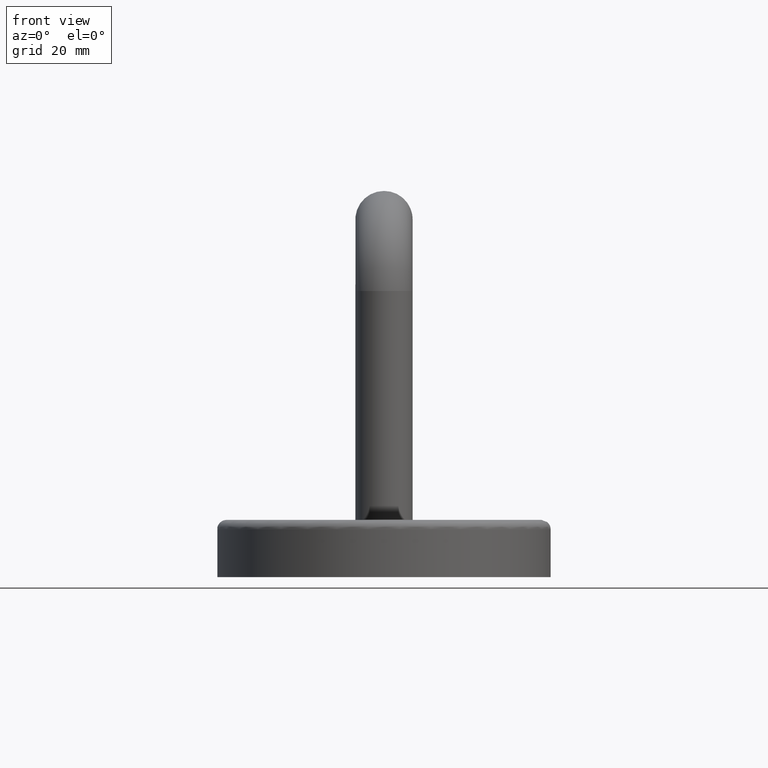
[diagram: clean part render]
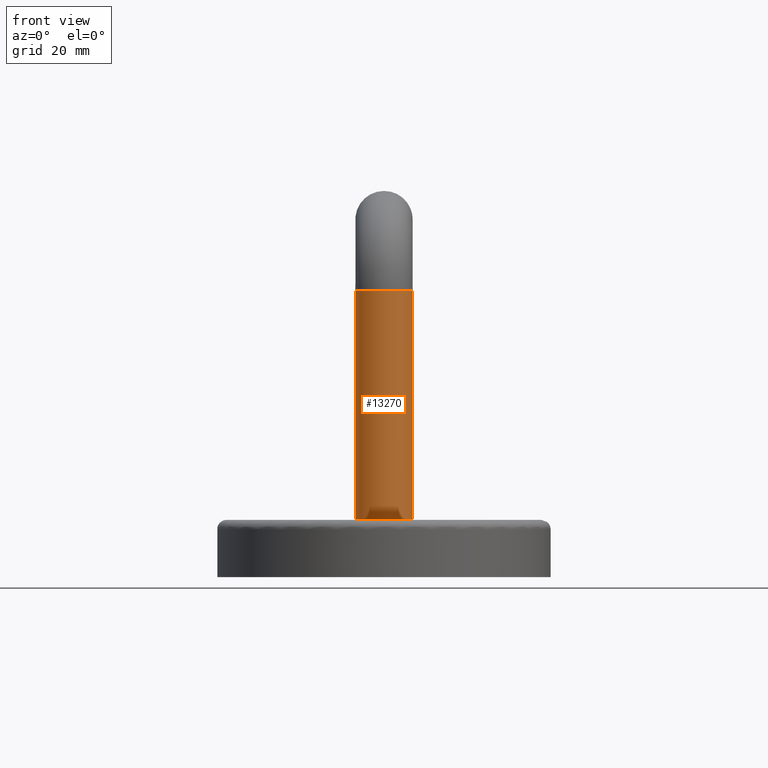
[diagram: same view with one face highlighted and labeled with its STEP entity id]
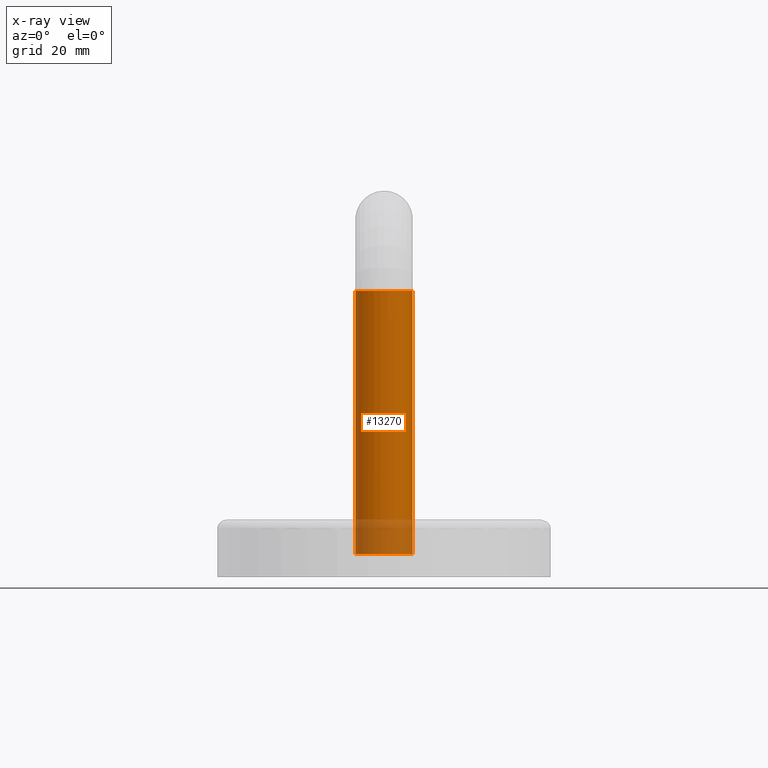
[diagram: x-ray of the same camera — body ghosted, the highlighted face saturated]
A machine part, front view. The second image highlights one B-rep face of the part: STEP entity #13270.
The next image is the same camera in x-ray: the body ghosted, the highlighted face saturated — about 13% of this face is hidden behind the body in this view.
In plain terms, the highlighted cylindrical surface (bore or boss wall) has radius 6 mm, axis along (0, 0, -1).
Its self-contained STEP definition (entity closure, byte-faithful):
#191 = CARTESIAN_POINT ( 'NONE',  ( 6.000000000000000900, -6.938893903907228400E-015, 57.70000000000000300 ) ) ;
#573 = FACE_OUTER_BOUND ( 'NONE', #3790, .T. ) ;
#779 = EDGE_CURVE ( 'NONE', #14647, #14647, #1655, .T. ) ;
#1479 = EDGE_CURVE ( 'NONE', #11168, #11168, #9633, .T. ) ;
#1655 = CIRCLE ( 'NONE', #6790, 6.000000000000000900 ) ;
#2543 = DIRECTION ( 'NONE',  ( -1.000000000000000000, 0.0000000000000000000, 0.0000000000000000000 ) ) ;
#3790 = EDGE_LOOP ( 'NONE', ( #8839 ) ) ;
#4051 = CARTESIAN_POINT ( 'NONE',  ( 0.0000000000000000000, -6.938893903907228400E-015, 57.70000000000000300 ) ) ;
#4093 = FACE_OUTER_BOUND ( 'NONE', #12875, .T. ) ;
#5241 = DIRECTION ( 'NONE',  ( 0.0000000000000000000, 0.0000000000000000000, -1.000000000000000000 ) ) ;
#6572 = ORIENTED_EDGE ( 'NONE', *, *, #1479, .F. ) ;
#6772 = CARTESIAN_POINT ( 'NONE',  ( 0.0000000000000000000, -6.938893903907228400E-015, 57.70000000000000300 ) ) ;
#6790 = AXIS2_PLACEMENT_3D ( 'NONE', #11344, #5241, #2543 ) ;
#7995 = DIRECTION ( 'NONE',  ( 1.000000000000000000, 0.0000000000000000000, 0.0000000000000000000 ) ) ;
#8097 = CYLINDRICAL_SURFACE ( 'NONE', #9989, 6.000000000000000900 ) ;
#8839 = ORIENTED_EDGE ( 'NONE', *, *, #779, .F. ) ;
#9633 = CIRCLE ( 'NONE', #12354, 6.000000000000000900 ) ;
#9989 = AXIS2_PLACEMENT_3D ( 'NONE', #4051, #13880, #15117 ) ;
#11168 = VERTEX_POINT ( 'NONE', #191 ) ;
#11344 = CARTESIAN_POINT ( 'NONE',  ( 0.0000000000000000000, 0.0000000000000000000, 2.500000000000000000 ) ) ;
#12354 = AXIS2_PLACEMENT_3D ( 'NONE', #6772, #15371, #7995 ) ;
#12875 = EDGE_LOOP ( 'NONE', ( #6572 ) ) ;
#13270 = ADVANCED_FACE ( 'NONE', ( #4093, #573 ), #8097, .T. ) ;
#13656 = CARTESIAN_POINT ( 'NONE',  ( -6.000000000000000900, 0.0000000000000000000, 2.500000000000000000 ) ) ;
#13880 = DIRECTION ( 'NONE',  ( -0.0000000000000000000, 1.202581265841807300E-016, -1.000000000000000000 ) ) ;
#14647 = VERTEX_POINT ( 'NONE', #13656 ) ;
#15117 = DIRECTION ( 'NONE',  ( 0.0000000000000000000, 1.000000000000000000, 0.0000000000000000000 ) ) ;
#15371 = DIRECTION ( 'NONE',  ( 0.0000000000000000000, 0.0000000000000000000, 1.000000000000000000 ) ) ;